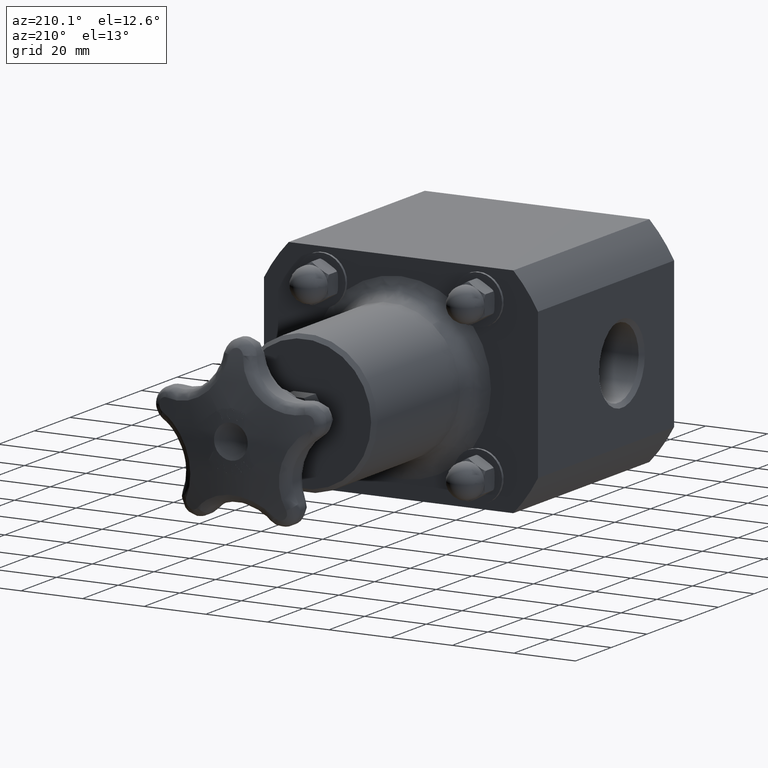
[diagram: clean part render]
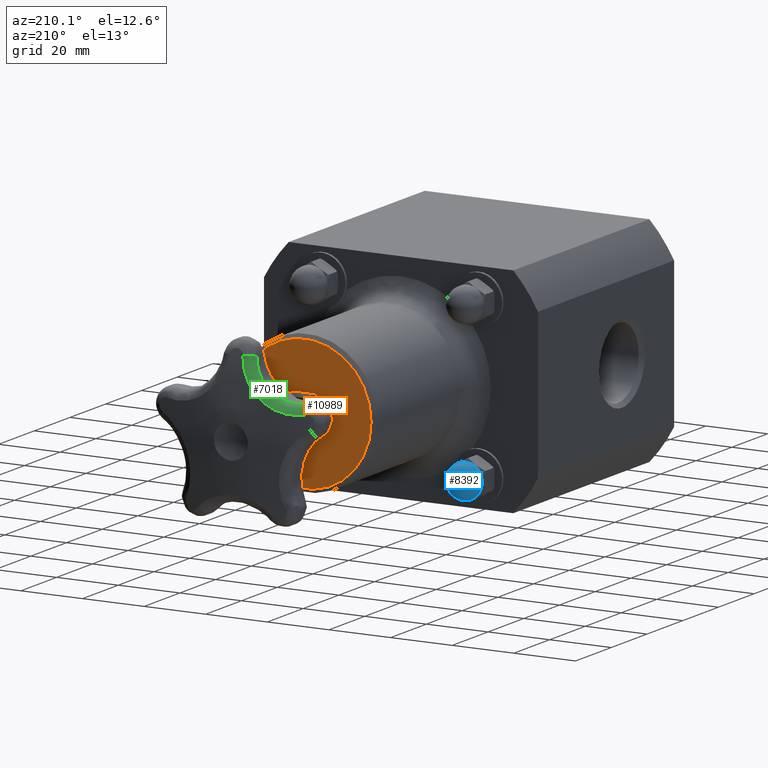
[diagram: same view with three faces highlighted in distinct colors, each labeled with its STEP entity id]
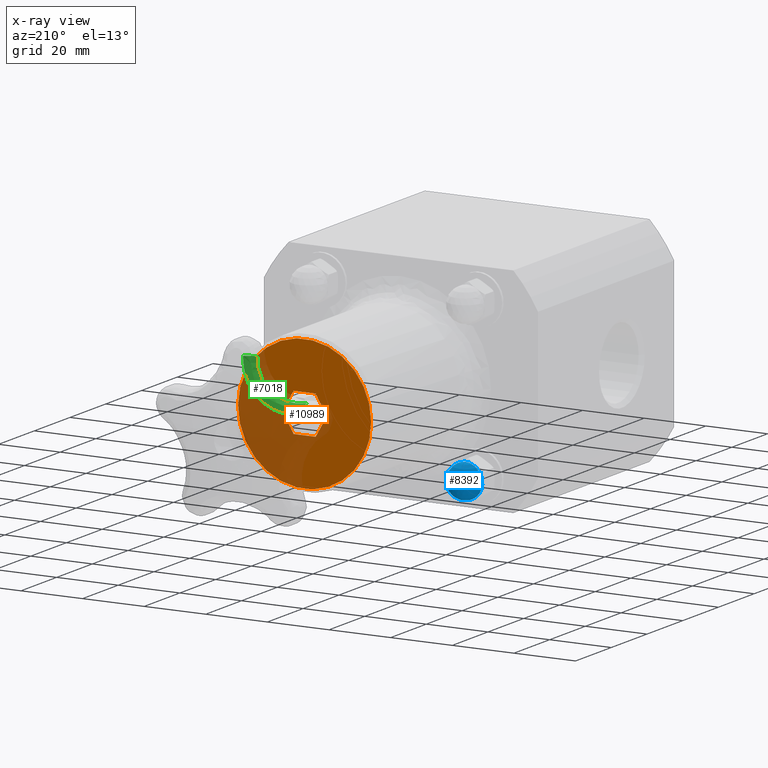
[diagram: x-ray of the same camera — body ghosted, the three highlighted faces saturated]
A machine part, auxiliary view with three faces highlighted in distinct colors.
The next image is the same camera in x-ray (body ghosted, the three faces saturated) — at least one of them is partly hidden behind the body in this view.
Their STEP definitions:

[orange] entity #10989 — the highlighted planar face has unit normal (0, 1, 0).
#10923=CARTESIAN_POINT('',(0.518749999999997,5.125000000000001,-2.288941E-016));
#10924=DIRECTION('',(0.0,1.0,0.0));
#10925=DIRECTION('',(0.0,0.0,1.0));
#10926=AXIS2_PLACEMENT_3D('',#10923,#10924,#10925);
#10927=PLANE('',#10926);
#10928=CARTESIAN_POINT('',(0.849999999999997,5.125000000000001,-3.398657E-016));
#10929=VERTEX_POINT('',#10928);
#10930=CARTESIAN_POINT('',(-2.515976E-015,5.125000000000001,-5.510831E-017));
#10931=DIRECTION('',(0.0,-1.0,0.0));
#10932=DIRECTION('',(1.0,0.0,0.0));
#10933=AXIS2_PLACEMENT_3D('',#10930,#10931,#10932);
#10934=CIRCLE('',#10933,0.849999999999999);
#10935=EDGE_CURVE('',#10929,#10929,#10934,.T.);
#10936=ORIENTED_EDGE('',*,*,#10935,.F.);
#10937=EDGE_LOOP('',(#10936));
#10938=FACE_OUTER_BOUND('',#10937,.T.);
#10939=CARTESIAN_POINT('',(-0.141162140816867,5.125000000000000,0.244500000000000));
#10940=VERTEX_POINT('',#10939);
#10941=CARTESIAN_POINT('',(-0.282324281633731,5.125000000000000,-3.465682E-016));
#10942=VERTEX_POINT('',#10941);
#10943=CARTESIAN_POINT('',(-0.141162140816867,5.125000000000000,0.244500000000000));
#10944=DIRECTION('',(-0.500000000000000,0.0,-0.866025403784439));
#10945=VECTOR('',#10944,0.282324281633727);
#10946=LINE('',#10943,#10945);
#10947=EDGE_CURVE('',#10940,#10942,#10946,.T.);
#10948=ORIENTED_EDGE('',*,*,#10947,.T.);
#10949=CARTESIAN_POINT('',(-0.141162140816867,5.125000000000000,-0.244500000000000));
#10950=VERTEX_POINT('',#10949);
#10951=CARTESIAN_POINT('',(-0.282324281633731,5.125000000000000,-3.885781E-016));
#10952=DIRECTION('',(0.500000000000001,0.0,-0.866025403784438));
#10953=VECTOR('',#10952,0.282324281633727);
#10954=LINE('',#10951,#10953);
#10955=EDGE_CURVE('',#10942,#10950,#10954,.T.);
#10956=ORIENTED_EDGE('',*,*,#10955,.T.);
#10957=CARTESIAN_POINT('',(0.141162140816860,5.125000000000000,-0.244500000000000));
#10958=VERTEX_POINT('',#10957);
#10959=CARTESIAN_POINT('',(-0.141162140816867,5.125000000000001,-0.244500000000000));
#10960=DIRECTION('',(1.0,0.0,0.0));
#10961=VECTOR('',#10960,0.282324281633727);
#10962=LINE('',#10959,#10961);
#10963=EDGE_CURVE('',#10950,#10958,#10962,.T.);
#10964=ORIENTED_EDGE('',*,*,#10963,.T.);
#10965=CARTESIAN_POINT('',(0.282324281633723,5.125000000000000,-2.674583E-017));
#10966=VERTEX_POINT('',#10965);
#10967=CARTESIAN_POINT('',(0.141162140816860,5.125000000000001,-0.244500000000000));
#10968=DIRECTION('',(0.500000000000000,0.0,0.866025403784439));
#10969=VECTOR('',#10968,0.282324281633727);
#10970=LINE('',#10967,#10969);
#10971=EDGE_CURVE('',#10958,#10966,#10970,.T.);
#10972=ORIENTED_EDGE('',*,*,#10971,.T.);
#10973=CARTESIAN_POINT('',(0.141162140816860,5.125000000000000,0.244500000000000));
#10974=VERTEX_POINT('',#10973);
#10975=CARTESIAN_POINT('',(0.282324281633723,5.125000000000001,-3.469447E-017));
#10976=DIRECTION('',(-0.500000000000000,0.0,0.866025403784439));
#10977=VECTOR('',#10976,0.282324281633727);
#10978=LINE('',#10975,#10977);
#10979=EDGE_CURVE('',#10966,#10974,#10978,.T.);
#10980=ORIENTED_EDGE('',*,*,#10979,.T.);
#10981=CARTESIAN_POINT('',(0.141162140816860,5.125000000000001,0.244500000000000));
#10982=DIRECTION('',(-1.0,0.0,0.0));
#10983=VECTOR('',#10982,0.282324281633727);
#10984=LINE('',#10981,#10983);
#10985=EDGE_CURVE('',#10974,#10940,#10984,.T.);
#10986=ORIENTED_EDGE('',*,*,#10985,.T.);
#10987=EDGE_LOOP('',(#10948,#10956,#10964,#10972,#10980,#10986));
#10988=FACE_BOUND('',#10987,.T.);
#10989=ADVANCED_FACE('',(#10938,#10988),#10927,.T.);

[blue] entity #8392 — the highlighted spherical surface has radius 5.4991 mm.
#8352=CARTESIAN_POINT('',(-1.108250000012514,3.307417576195780,-1.187494499940984));
#8353=VERTEX_POINT('',#8352);
#8354=CARTESIAN_POINT('',(-1.000000000000002,3.307417576195780,-0.783499999975000));
#8355=VERTEX_POINT('',#8354);
#8356=CARTESIAN_POINT('',(-1.000000000000002,3.307417576195780,-1.000000000000000));
#8357=DIRECTION('',(-1.561076E-016,1.000000000000000,-2.703862E-016));
#8358=DIRECTION('',(0.500000000000032,3.122151E-016,0.866025403784420));
#8359=AXIS2_PLACEMENT_3D('',#8356,#8357,#8358);
#8360=CIRCLE('',#8359,0.216500000025000);
#8361=EDGE_CURVE('',#8353,#8355,#8360,.T.);
#8363=CARTESIAN_POINT('',(-1.000000000000002,3.307417576195780,-1.216500000025001));
#8364=VERTEX_POINT('',#8363);
#8365=CARTESIAN_POINT('',(-1.000000000000002,3.307417576195780,-1.000000000000000));
#8366=DIRECTION('',(-1.561076E-016,1.000000000000000,-2.703862E-016));
#8367=DIRECTION('',(0.500000000000032,3.122151E-016,0.866025403784420));
#8368=AXIS2_PLACEMENT_3D('',#8365,#8366,#8367);
#8369=CIRCLE('',#8368,0.216500000025000);
#8370=EDGE_CURVE('',#8364,#8353,#8369,.T.);
#8372=CARTESIAN_POINT('',(-1.000000000000002,3.307417576195780,-1.000000000000000));
#8373=DIRECTION('',(-1.561076E-016,1.000000000000000,-2.703862E-016));
#8374=DIRECTION('',(0.500000000000032,3.122151E-016,0.866025403784420));
#8375=AXIS2_PLACEMENT_3D('',#8372,#8373,#8374);
#8376=CIRCLE('',#8375,0.216500000025000);
#8377=EDGE_CURVE('',#8355,#8364,#8376,.T.);
#8382=CARTESIAN_POINT('',(-1.000000000000002,3.307417576195780,-1.000000000000001));
#8383=DIRECTION('',(0.0,0.0,1.0));
#8384=DIRECTION('',(1.0,0.0,0.0));
#8385=AXIS2_PLACEMENT_3D('',#8382,#8383,#8384);
#8386=SPHERICAL_SURFACE('',#8385,0.216500000025000);
#8387=ORIENTED_EDGE('',*,*,#8361,.T.);
#8388=ORIENTED_EDGE('',*,*,#8377,.T.);
#8389=ORIENTED_EDGE('',*,*,#8370,.T.);
#8390=EDGE_LOOP('',(#8387,#8388,#8389));
#8391=FACE_OUTER_BOUND('',#8390,.T.);
#8392=ADVANCED_FACE('',(#8391),#8386,.T.);

[green] entity #7018 — the highlighted face is a freeform B-spline surface patch.
#5244=CARTESIAN_POINT('',(-0.885536082012024,6.637776509861735,0.379150297943406));
#5245=VERTEX_POINT('',#5244);
#5265=CARTESIAN_POINT('',(-0.086947663040456,6.637776509861831,0.959358746698467));
#5266=VERTEX_POINT('',#5265);
#5267=CARTESIAN_POINT('',(-0.086947663040456,6.637776509861829,0.959358746698470));
#5268=CARTESIAN_POINT('',(-0.093352425211148,6.650252050247303,0.908292994019373));
#5269=CARTESIAN_POINT('',(-0.118427345408804,6.672851063495754,0.805543291395521));
#5270=CARTESIAN_POINT('',(-0.190540386722649,6.696443995900790,0.664230827120378));
#5271=CARTESIAN_POINT('',(-0.295106369051179,6.708740981652950,0.541709446220765));
#5272=CARTESIAN_POINT('',(-0.447124789207163,6.708648646924091,0.431594577430660));
#5273=CARTESIAN_POINT('',(-0.651113974695524,6.688073557226791,0.361324977985522));
#5274=CARTESIAN_POINT('',(-0.809717686211067,6.656489820439957,0.364616956027417));
#5275=CARTESIAN_POINT('',(-0.885536082012024,6.637776509861736,0.379150297943406));
#5276=B_SPLINE_CURVE_WITH_KNOTS('',3,(#5267,#5268,#5269,#5270,#5271,#5272,#5273,#5274,#5275),.UNSPECIFIED.,.F.,.U.,(4,1,1,1,1,1,4),(6.980493E-016,0.391421298642813,0.782842597285625,1.174263895928437,1.565685194571249,2.152817142535468,2.739949090499686),.UNSPECIFIED.);
#5277=EDGE_CURVE('',#5266,#5245,#5276,.T.);
#5778=CARTESIAN_POINT('',(-0.836378947165189,6.521308214565884,0.485630124318115));
#5779=VERTEX_POINT('',#5778);
#5815=CARTESIAN_POINT('',(-0.203406385830522,6.521308214565975,0.945511609188104));
#5816=VERTEX_POINT('',#5815);
#5823=CARTESIAN_POINT('',(-0.836378947165344,6.521308214565884,0.485630124318145));
#5824=CARTESIAN_POINT('',(-0.776284206186962,6.539460125826760,0.474110790404981));
#5825=CARTESIAN_POINT('',(-0.650572644223061,6.570096350509985,0.471501521695926));
#5826=CARTESIAN_POINT('',(-0.488887908812726,6.590054187516370,0.527198207608355));
#5827=CARTESIAN_POINT('',(-0.368395942625538,6.590143752203359,0.614476821827276));
#5828=CARTESIAN_POINT('',(-0.285515454891669,6.578215676023767,0.711589014345898));
#5829=CARTESIAN_POINT('',(-0.228357630683736,6.555330531590880,0.823595287334383));
#5830=CARTESIAN_POINT('',(-0.208482891599470,6.533409488739883,0.905036165891032));
#5831=CARTESIAN_POINT('',(-0.203406385830523,6.521308214565972,0.945511609188102));
#5832=B_SPLINE_CURVE_WITH_KNOTS('',3,(#5823,#5824,#5825,#5826,#5827,#5828,#5829,#5830,#5831),.UNSPECIFIED.,.F.,.U.,(4,1,1,1,1,1,4),(-2.739949090499686,-2.152817142535468,-1.565685194571249,-1.174263895928437,-0.782842597285625,-0.391421298642813,-6.980493E-016),.UNSPECIFIED.);
#5833=EDGE_CURVE('',#5779,#5816,#5832,.T.);
#6687=CARTESIAN_POINT('',(-0.084339233149243,6.521308214565975,0.930577984297513));
#6688=DIRECTION('',(0.120944259478503,-0.235581736417829,0.964299606743442));
#6689=DIRECTION('',(-0.021736915760110,0.970569127465458,0.239839686674616));
#6690=AXIS2_PLACEMENT_3D('',#6687,#6688,#6689);
#6691=CIRCLE('',#6690,0.120000000000001);
#6692=EDGE_CURVE('',#5266,#5816,#6691,.T.);
#6924=CARTESIAN_POINT('',(-0.086947663040456,6.637776509861829,0.959358746698470));
#6925=CARTESIAN_POINT('',(-0.093352425211148,6.650252050247303,0.908292994019373));
#6926=CARTESIAN_POINT('',(-0.118427345408804,6.672851063495754,0.805543291395521));
#6927=CARTESIAN_POINT('',(-0.190540386722649,6.696443995900790,0.664230827120378));
#6928=CARTESIAN_POINT('',(-0.295106369051179,6.708740981652950,0.541709446220765));
#6929=CARTESIAN_POINT('',(-0.447124789207163,6.708648646924091,0.431594577430660));
#6930=CARTESIAN_POINT('',(-0.651113974695524,6.688073557226791,0.361324977985522));
#6931=CARTESIAN_POINT('',(-0.809717686211067,6.656489820439957,0.364616956027417));
#6932=CARTESIAN_POINT('',(-0.885536082012024,6.637776509861736,0.379150297943406));
#6933=CARTESIAN_POINT('',(-0.104180161478883,6.636908858405151,0.961308108611182));
#6934=CARTESIAN_POINT('',(-0.110224296323031,6.649087556793072,0.911470103079139));
#6935=CARTESIAN_POINT('',(-0.134320695188167,6.671162688165934,0.811152309180666));
#6936=CARTESIAN_POINT('',(-0.204305357291316,6.694219755290722,0.673142727953548));
#6937=CARTESIAN_POINT('',(-0.306127718007005,6.706243780194952,0.553520505105598));
#6938=CARTESIAN_POINT('',(-0.454378977114615,6.706152554661421,0.446134401417576));
#6939=CARTESIAN_POINT('',(-0.653453846604162,6.686037694680870,0.377924605038889));
#6940=CARTESIAN_POINT('',(-0.808165150033405,6.655176905986951,0.381663048565100));
#6941=CARTESIAN_POINT('',(-0.882064900488704,6.636908858405059,0.396141763834533));
#6942=CARTESIAN_POINT('',(-0.129885581999241,6.630018349255376,0.962848755240840));
#6943=CARTESIAN_POINT('',(-0.135384925842319,6.641871890296236,0.914958598487652));
#6944=CARTESIAN_POINT('',(-0.157986077240760,6.663369814321002,0.818482653247155));
#6945=CARTESIAN_POINT('',(-0.224697905158575,6.685846710921155,0.685656479446968));
#6946=CARTESIAN_POINT('',(-0.322283089050407,6.697571593733512,0.570553578565760));
#6947=CARTESIAN_POINT('',(-0.464698688631698,6.697484257064077,0.467395393579903));
#6948=CARTESIAN_POINT('',(-0.656121377922410,6.677864130512638,0.402337898570720));
#6949=CARTESIAN_POINT('',(-0.804718276188891,6.647798660816586,0.406712129261315));
#6950=CARTESIAN_POINT('',(-0.875586730716788,6.630018349255287,0.421065157515417));
#6951=CARTESIAN_POINT('',(-0.159178525720001,6.611003643008802,0.961877372361245));
#6952=CARTESIAN_POINT('',(-0.164147821498937,6.622681486664462,0.916443369369621));
#6953=CARTESIAN_POINT('',(-0.185153372479506,6.643869767985853,0.824834303427671));
#6954=CARTESIAN_POINT('',(-0.248053809880645,6.666033236178132,0.698588422846565));
#6955=CARTESIAN_POINT('',(-0.340502279057339,6.677598228862745,0.589187344687826));
#6956=CARTESIAN_POINT('',(-0.475690989249603,6.677512057981670,0.491263535414578));
#6957=CARTESIAN_POINT('',(-0.657527076459769,6.658159668096200,0.429880132521068));
#6958=CARTESIAN_POINT('',(-0.798492021095853,6.628520408492213,0.434653531832224));
#6959=CARTESIAN_POINT('',(-0.865610873274330,6.611003643008714,0.448624228704671));
#6960=CARTESIAN_POINT('',(-0.177641401186242,6.592548919270539,0.959684467741688));
#6961=CARTESIAN_POINT('',(-0.182353964618404,6.604213509922350,0.915934637539372));
#6962=CARTESIAN_POINT('',(-0.202456456728739,6.625376603426857,0.827687086906445));
#6963=CARTESIAN_POINT('',(-0.262934403165562,6.647513449903991,0.706016063440408));
#6964=CARTESIAN_POINT('',(-0.351959472962086,6.659063919530742,0.600566413626200));
#6965=CARTESIAN_POINT('',(-0.482223444367282,6.658978054849633,0.506209503892967));
#6966=CARTESIAN_POINT('',(-0.657461304350763,6.639649244008060,0.447170565478059));
#6967=CARTESIAN_POINT('',(-0.793222719829696,6.610045805248179,0.451949531622476));
#6968=CARTESIAN_POINT('',(-0.857819954762177,6.592548919270452,0.465505821931897));
#6969=CARTESIAN_POINT('',(-0.191722831635718,6.570743522767244,0.956123453126104));
#6970=CARTESIAN_POINT('',(-0.196351972277720,6.582494062912272,0.913818525038692));
#6971=CARTESIAN_POINT('',(-0.215923126844701,6.603805891010388,0.828493268417833));
#6972=CARTESIAN_POINT('',(-0.274551449224982,6.626089005535145,0.710853111888778));
#6973=CARTESIAN_POINT('',(-0.360737628701476,6.637713091300023,0.608877850976839));
#6974=CARTESIAN_POINT('',(-0.486772103772685,6.637626499196673,0.517584186611886));
#6975=CARTESIAN_POINT('',(-0.656266045723252,6.618175073352040,0.460353218940598));
#6976=CARTESIAN_POINT('',(-0.787584536308413,6.588369332984708,0.464792093057560));
#6977=CARTESIAN_POINT('',(-0.850081827293397,6.570743522767158,0.477797644086192));
#6978=CARTESIAN_POINT('',(-0.200765177341829,6.546619603441009,0.951364003919022));
#6979=CARTESIAN_POINT('',(-0.205503625321456,6.558526979654115,0.910192864151760));
#6980=CARTESIAN_POINT('',(-0.224966630042632,6.580111220907514,0.827216449846172));
#6981=CARTESIAN_POINT('',(-0.282422820228032,6.602663377696567,0.712897787598310));
#6982=CARTESIAN_POINT('',(-0.366481388975032,6.614423333033382,0.613784644586963));
#6983=CARTESIAN_POINT('',(-0.489152290071918,6.614335384140136,0.524927230088624));
#6984=CARTESIAN_POINT('',(-0.653986981660645,6.594657717148500,0.468871459882917));
#6985=CARTESIAN_POINT('',(-0.781830571051395,6.564480667760591,0.472602600147111));
#6986=CARTESIAN_POINT('',(-0.842761083618816,6.546619603440922,0.484926675203727));
#6987=CARTESIAN_POINT('',(-0.203151850662225,6.529745902373059,0.947541041289721));
#6988=CARTESIAN_POINT('',(-0.208094831892269,6.541782556103569,0.906879509598023));
#6989=CARTESIAN_POINT('',(-0.227783484645376,6.563591267470718,0.825012193750901));
#6990=CARTESIAN_POINT('',(-0.284954905957975,6.586365430062979,0.712341704052910));
#6991=CARTESIAN_POINT('',(-0.368132175000373,6.598237408310704,0.614652787805997));
#6992=CARTESIAN_POINT('',(-0.489228580858644,6.598148416873741,0.526936133259231));
#6993=CARTESIAN_POINT('',(-0.651806077791794,6.578283942462699,0.471200050375587));
#6994=CARTESIAN_POINT('',(-0.778089387661310,6.547800882968745,0.474219101294068));
#6995=CARTESIAN_POINT('',(-0.838387707482639,6.529745902372971,0.486015175996040));
#6996=CARTESIAN_POINT('',(-0.203406385830523,6.521308214565972,0.945511609188102));
#6997=CARTESIAN_POINT('',(-0.208482891599470,6.533409488739883,0.905036165891032));
#6998=CARTESIAN_POINT('',(-0.228357630683736,6.555330531590880,0.823595287334383));
#6999=CARTESIAN_POINT('',(-0.285515454891669,6.578215676023767,0.711589014345898));
#7000=CARTESIAN_POINT('',(-0.368395942625538,6.590143752203359,0.614476821827276));
#7001=CARTESIAN_POINT('',(-0.488887908812726,6.590054187516370,0.527198207608355));
#7002=CARTESIAN_POINT('',(-0.650572644223061,6.570096350509985,0.471501521695926));
#7003=CARTESIAN_POINT('',(-0.776284206186962,6.539460125826760,0.474110790404981));
#7004=CARTESIAN_POINT('',(-0.836378947165344,6.521308214565884,0.485630124318145));
#7005=B_SPLINE_SURFACE_WITH_KNOTS('',3,3,((#6924,#6933,#6942,#6951,#6960,#6969,#6978,#6987,#6996),(#6925,#6934,#6943,#6952,#6961,#6970,#6979,#6988,#6997),(#6926,#6935,#6944,#6953,#6962,#6971,#6980,#6989,#6998),(#6927,#6936,#6945,#6954,#6963,#6972,#6981,#6990,#6999),(#6928,#6937,#6946,#6955,#6964,#6973,#6982,#6991,#7000),(#6929,#6938,#6947,#6956,#6965,#6974,#6983,#6992,#7001),(#6930,#6939,#6948,#6957,#6966,#6975,#6984,#6993,#7002),(#6931,#6940,#6949,#6958,#6967,#6976,#6985,#6994,#7003),(#6932,#6941,#6950,#6959,#6968,#6977,#6986,#6995,#7004)),.UNSPECIFIED.,.F.,.F.,.U.,(4,1,1,1,1,1,4),(4,1,1,1,1,1,4),(6.980493E-016,0.391421298642813,0.782842597285625,1.174263895928437,1.565685194571249,2.152817142535468,2.739949090499686),(0.0,0.285714285714286,0.428571428571429,0.571428571428571,0.714285714285714,0.857142857142857,1.0),.UNSPECIFIED.);
#7006=CARTESIAN_POINT('',(-0.858969999551664,6.521308214565885,0.367775789005104));
#7007=DIRECTION('',(0.954477256204757,0.235581736418023,-0.182960140069111));
#7008=DIRECTION('',(-0.221384020503009,0.970569127465433,0.094787574485852));
#7009=AXIS2_PLACEMENT_3D('',#7006,#7007,#7008);
#7010=CIRCLE('',#7009,0.119999999999999);
#7011=EDGE_CURVE('',#5245,#5779,#7010,.T.);
#7012=ORIENTED_EDGE('',*,*,#7011,.T.);
#7013=ORIENTED_EDGE('',*,*,#5833,.T.);
#7014=ORIENTED_EDGE('',*,*,#6692,.F.);
#7015=ORIENTED_EDGE('',*,*,#5277,.T.);
#7016=EDGE_LOOP('',(#7012,#7013,#7014,#7015));
#7017=FACE_OUTER_BOUND('',#7016,.T.);
#7018=ADVANCED_FACE('',(#7017),#7005,.T.);